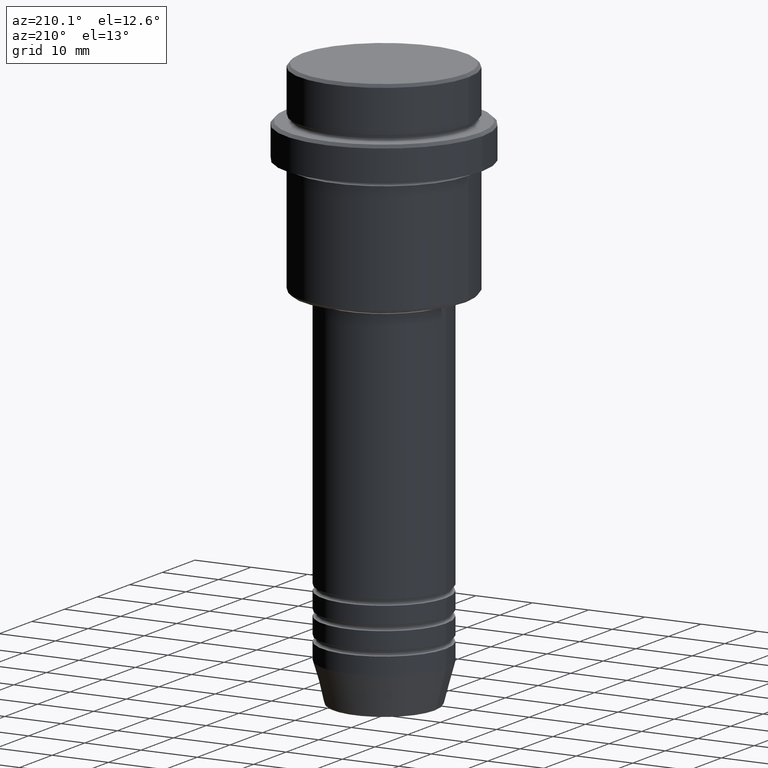
[diagram: clean part render]
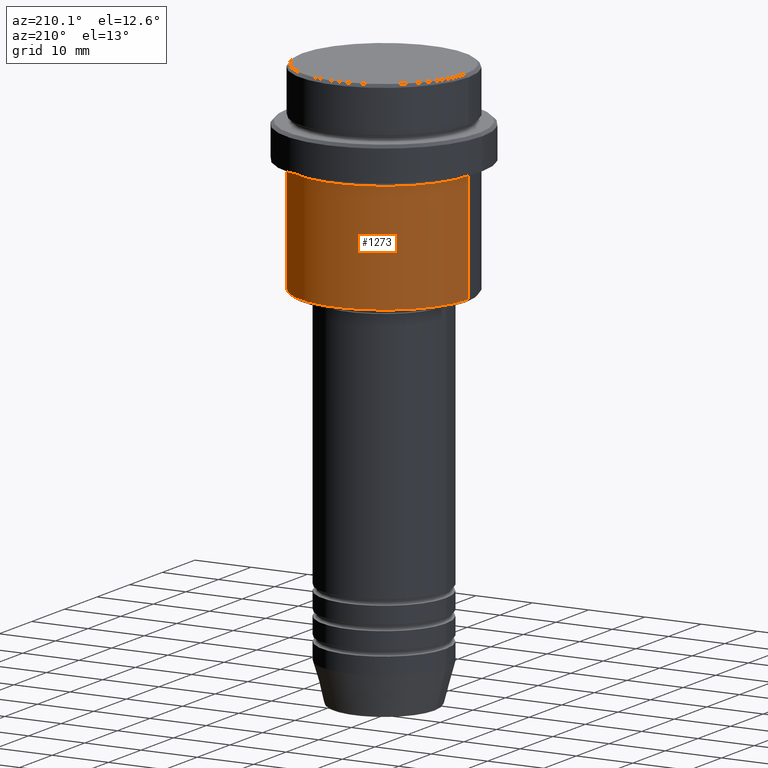
[diagram: same view with one face highlighted and labeled with its STEP entity id]
A machine part, auxiliary view. The second image highlights one B-rep face of the part: STEP entity #1273.
In plain terms, the highlighted cylindrical surface (partial cylindrical patch) has radius 15 mm, axis along (-0, -0, 1).
Its self-contained STEP definition (entity closure, byte-faithful):
#3 = EDGE_LOOP ( 'NONE', ( #303, #515, #1157, #493 ) ) ;
#13 = DIRECTION ( 'NONE',  ( -0.000000000000000000, -0.000000000000000000, 1.000000000000000000 ) ) ;
#27 = CARTESIAN_POINT ( 'NONE',  ( 0.000000000000000000, 0.000000000000000000, -16.00000000000000000 ) ) ;
#190 = DIRECTION ( 'NONE',  ( -1.000000000000000000, 0.000000000000000000, 0.000000000000000000 ) ) ;
#264 = VERTEX_POINT ( 'NONE', #551 ) ;
#279 = EDGE_CURVE ( 'NONE', #750, #901, #453, .T. ) ;
#303 = ORIENTED_EDGE ( 'NONE', *, *, #279, .T. ) ;
#312 = AXIS2_PLACEMENT_3D ( 'NONE', #587, #1219, #1008 ) ;
#328 = LINE ( 'NONE', #771, #1013 ) ;
#336 = FACE_OUTER_BOUND ( 'NONE', #3, .T. ) ;
#406 = VECTOR ( 'NONE', #486, 1000.000000000000000 ) ;
#440 = EDGE_CURVE ( 'NONE', #750, #264, #1002, .T. ) ;
#447 = DIRECTION ( 'NONE',  ( -0.000000000000000000, -0.000000000000000000, 1.000000000000000000 ) ) ;
#453 = CIRCLE ( 'NONE', #640, 15.00000000000000000 ) ;
#462 = DIRECTION ( 'NONE',  ( -0.000000000000000000, -0.000000000000000000, 1.000000000000000000 ) ) ;
#465 = CARTESIAN_POINT ( 'NONE',  ( 15.00000000000000000, 0.000000000000000000, 0.000000000000000000 ) ) ;
#486 = DIRECTION ( 'NONE',  ( -0.000000000000000000, -0.000000000000000000, 1.000000000000000000 ) ) ;
#493 = ORIENTED_EDGE ( 'NONE', *, *, #440, .F. ) ;
#515 = ORIENTED_EDGE ( 'NONE', *, *, #1386, .T. ) ;
#551 = CARTESIAN_POINT ( 'NONE',  ( 15.00000000000000178, 0.000000000000000000, -16.00000000000000000 ) ) ;
#567 = DIRECTION ( 'NONE',  ( 1.000000000000000000, 0.000000000000000000, 0.000000000000000000 ) ) ;
#587 = CARTESIAN_POINT ( 'NONE',  ( 0.000000000000000000, 0.000000000000000000, 0.000000000000000000 ) ) ;
#639 = AXIS2_PLACEMENT_3D ( 'NONE', #27, #462, #567 ) ;
#640 = AXIS2_PLACEMENT_3D ( 'NONE', #948, #447, #190 ) ;
#645 = CIRCLE ( 'NONE', #639, 15.00000000000000178 ) ;
#750 = VERTEX_POINT ( 'NONE', #884 ) ;
#771 = CARTESIAN_POINT ( 'NONE',  ( -15.00000000000000000, 1.836970198721029589E-15, 0.000000000000000000 ) ) ;
#797 = CYLINDRICAL_SURFACE ( 'NONE', #312, 15.00000000000000000 ) ;
#816 = CARTESIAN_POINT ( 'NONE',  ( -15.00000000000000000, 1.836970198721029589E-15, -35.50000000000000711 ) ) ;
#884 = CARTESIAN_POINT ( 'NONE',  ( 15.00000000000000000, 0.000000000000000000, -35.50000000000000711 ) ) ;
#901 = VERTEX_POINT ( 'NONE', #816 ) ;
#948 = CARTESIAN_POINT ( 'NONE',  ( 0.000000000000000000, 0.000000000000000000, -35.50000000000000711 ) ) ;
#1002 = LINE ( 'NONE', #465, #406 ) ;
#1008 = DIRECTION ( 'NONE',  ( 1.000000000000000000, 0.000000000000000000, 0.000000000000000000 ) ) ;
#1013 = VECTOR ( 'NONE', #13, 1000.000000000000000 ) ;
#1057 = VERTEX_POINT ( 'NONE', #1250 ) ;
#1157 = ORIENTED_EDGE ( 'NONE', *, *, #1283, .F. ) ;
#1219 = DIRECTION ( 'NONE',  ( -0.000000000000000000, -0.000000000000000000, 1.000000000000000000 ) ) ;
#1250 = CARTESIAN_POINT ( 'NONE',  ( -15.00000000000000355, 1.836970198721029983E-15, -16.00000000000000000 ) ) ;
#1273 = ADVANCED_FACE ( 'NONE', ( #336 ), #797, .T. ) ;
#1283 = EDGE_CURVE ( 'NONE', #264, #1057, #645, .T. ) ;
#1386 = EDGE_CURVE ( 'NONE', #901, #1057, #328, .T. ) ;